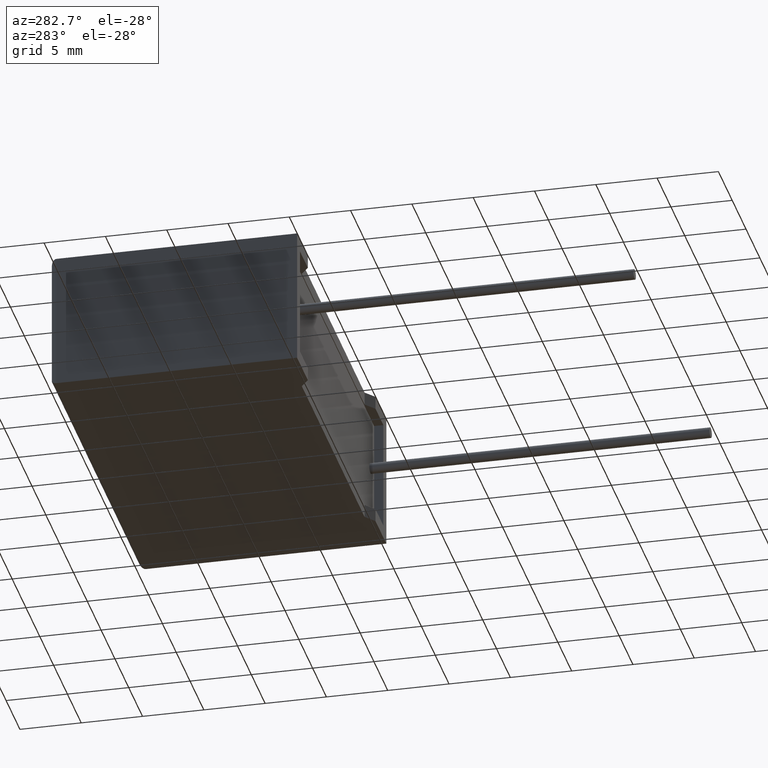
[diagram: clean part render]
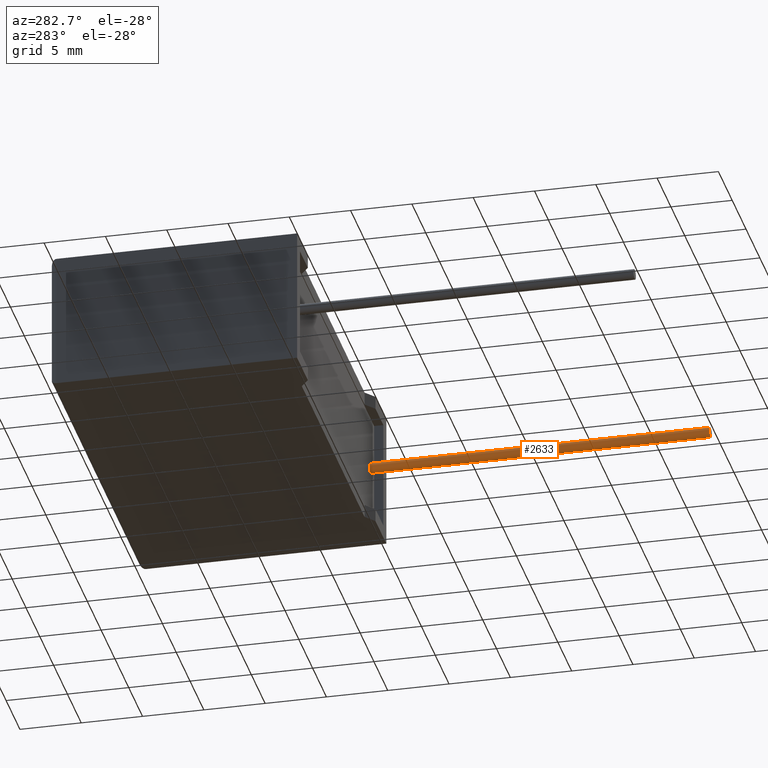
[diagram: same view with one face highlighted and labeled with its STEP entity id]
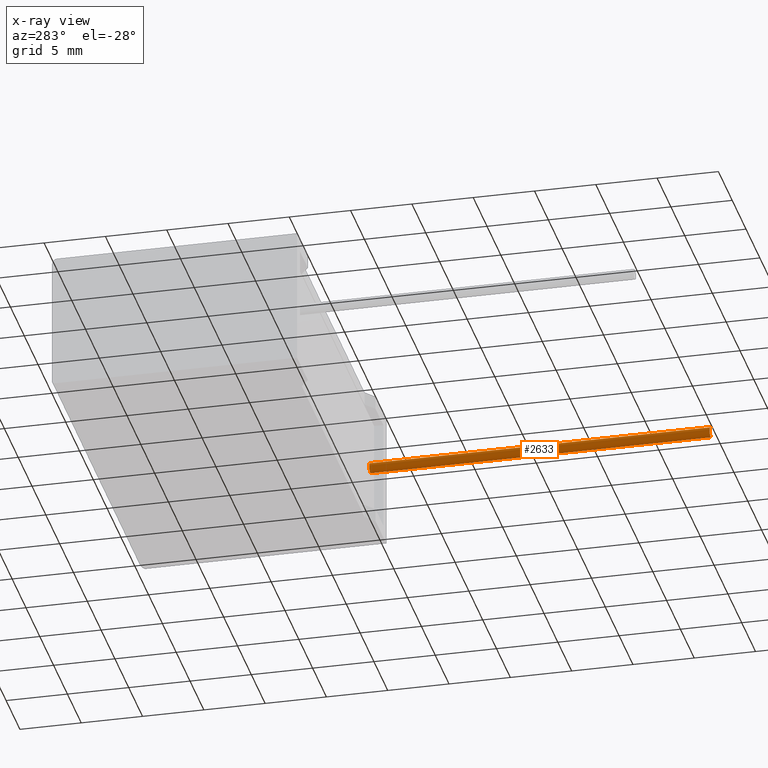
[diagram: x-ray of the same camera — body ghosted, the highlighted face saturated]
A machine part, auxiliary view. The second image highlights one B-rep face of the part: STEP entity #2633.
The next image is the same camera in x-ray: the body ghosted, the highlighted face saturated — about 0% of this face is hidden behind the body in this view.
In plain terms, the highlighted cylindrical surface (edge-blend (fillet) strip) has radius 0.425 mm, axis along (-0, 1, -0).
Its self-contained STEP definition (entity closure, byte-faithful):
#41 = AXIS2_PLACEMENT_3D ( 'NONE', #590, #113, #2909 ) ;
#113 = DIRECTION ( 'NONE',  ( -0.0000000000000000000, 1.000000000000000000, -0.0000000000000000000 ) ) ;
#480 = DIRECTION ( 'NONE',  ( -0.0000000000000000000, 1.000000000000000000, -0.0000000000000000000 ) ) ;
#512 = CARTESIAN_POINT ( 'NONE',  ( 29.89999999999999500, -27.00000000000000000, 5.600000000000000500 ) ) ;
#539 = VERTEX_POINT ( 'NONE', #566 ) ;
#566 = CARTESIAN_POINT ( 'NONE',  ( 29.89999999999999500, -27.00000000000000000, 6.025000000000001200 ) ) ;
#590 = CARTESIAN_POINT ( 'NONE',  ( 29.89999999999999500, -27.00000000000000000, 5.600000000000000500 ) ) ;
#612 = CIRCLE ( 'NONE', #41, 0.4250000000000000400 ) ;
#620 = CARTESIAN_POINT ( 'NONE',  ( 29.89999999999999500, -27.00000000000000000, 5.175000000000000700 ) ) ;
#652 = DIRECTION ( 'NONE',  ( -0.0000000000000000000, 1.000000000000000000, -0.0000000000000000000 ) ) ;
#925 = DIRECTION ( 'NONE',  ( 0.0000000000000000000, -1.000000000000000000, 0.0000000000000000000 ) ) ;
#968 = AXIS2_PLACEMENT_3D ( 'NONE', #2343, #925, #2203 ) ;
#1112 = VECTOR ( 'NONE', #2278, 1000.000000000000000 ) ;
#1165 = FACE_OUTER_BOUND ( 'NONE', #1493, .T. ) ;
#1177 = ORIENTED_EDGE ( 'NONE', *, *, #1561, .T. ) ;
#1215 = EDGE_CURVE ( 'NONE', #2321, #1987, #2744, .T. ) ;
#1449 = CARTESIAN_POINT ( 'NONE',  ( 29.89999999999999500, 0.7500000000000006700, 5.175000000000000700 ) ) ;
#1493 = EDGE_LOOP ( 'NONE', ( #2910, #2210, #1177, #2947 ) ) ;
#1561 = EDGE_CURVE ( 'NONE', #539, #2098, #2083, .T. ) ;
#1639 = CYLINDRICAL_SURFACE ( 'NONE', #1656, 0.4250000000000000400 ) ;
#1656 = AXIS2_PLACEMENT_3D ( 'NONE', #512, #480, #2121 ) ;
#1716 = VECTOR ( 'NONE', #652, 1000.000000000000000 ) ;
#1800 = CARTESIAN_POINT ( 'NONE',  ( 29.89999999999999500, -27.00000000000000000, 6.025000000000001200 ) ) ;
#1987 = VERTEX_POINT ( 'NONE', #1449 ) ;
#2083 = LINE ( 'NONE', #1800, #1112 ) ;
#2098 = VERTEX_POINT ( 'NONE', #2447 ) ;
#2121 = DIRECTION ( 'NONE',  ( 0.0000000000000000000, 0.0000000000000000000, 1.000000000000000000 ) ) ;
#2203 = DIRECTION ( 'NONE',  ( 0.0000000000000000000, 0.0000000000000000000, -1.000000000000000000 ) ) ;
#2210 = ORIENTED_EDGE ( 'NONE', *, *, #2802, .T. ) ;
#2278 = DIRECTION ( 'NONE',  ( -0.0000000000000000000, 1.000000000000000000, -0.0000000000000000000 ) ) ;
#2321 = VERTEX_POINT ( 'NONE', #620 ) ;
#2343 = CARTESIAN_POINT ( 'NONE',  ( 29.89999999999999500, 0.7500000000000006700, 5.600000000000000500 ) ) ;
#2447 = CARTESIAN_POINT ( 'NONE',  ( 29.89999999999999500, 0.7500000000000006700, 6.025000000000001200 ) ) ;
#2633 = ADVANCED_FACE ( 'NONE', ( #1165 ), #1639, .T. ) ;
#2714 = EDGE_CURVE ( 'NONE', #2098, #1987, #2770, .T. ) ;
#2744 = LINE ( 'NONE', #2792, #1716 ) ;
#2770 = CIRCLE ( 'NONE', #968, 0.4250000000000000400 ) ;
#2792 = CARTESIAN_POINT ( 'NONE',  ( 29.89999999999999500, -27.00000000000000000, 5.175000000000000700 ) ) ;
#2802 = EDGE_CURVE ( 'NONE', #2321, #539, #612, .T. ) ;
#2909 = DIRECTION ( 'NONE',  ( 0.0000000000000000000, 0.0000000000000000000, -1.000000000000000000 ) ) ;
#2910 = ORIENTED_EDGE ( 'NONE', *, *, #1215, .F. ) ;
#2947 = ORIENTED_EDGE ( 'NONE', *, *, #2714, .T. ) ;